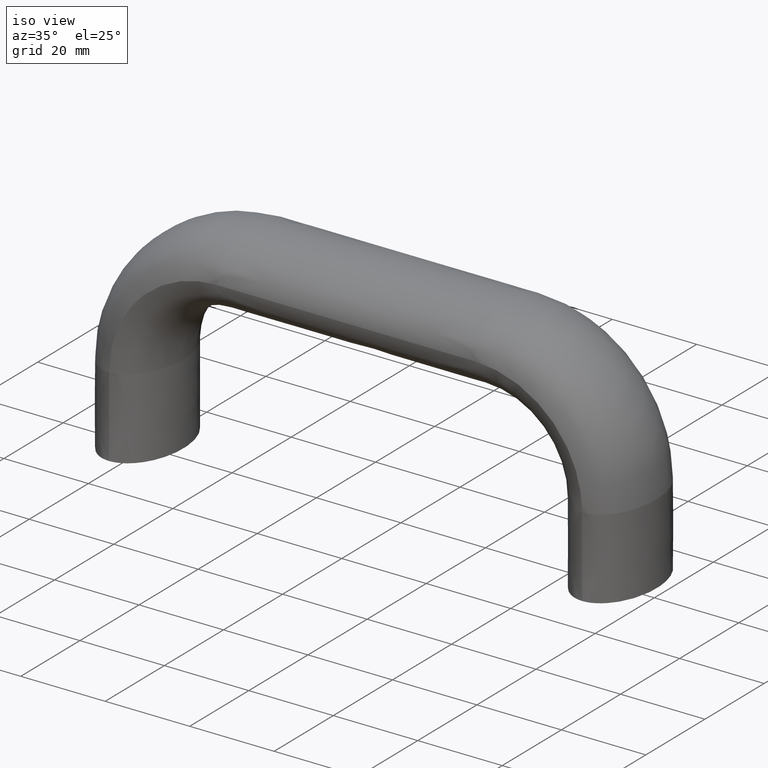
[diagram: clean part render]
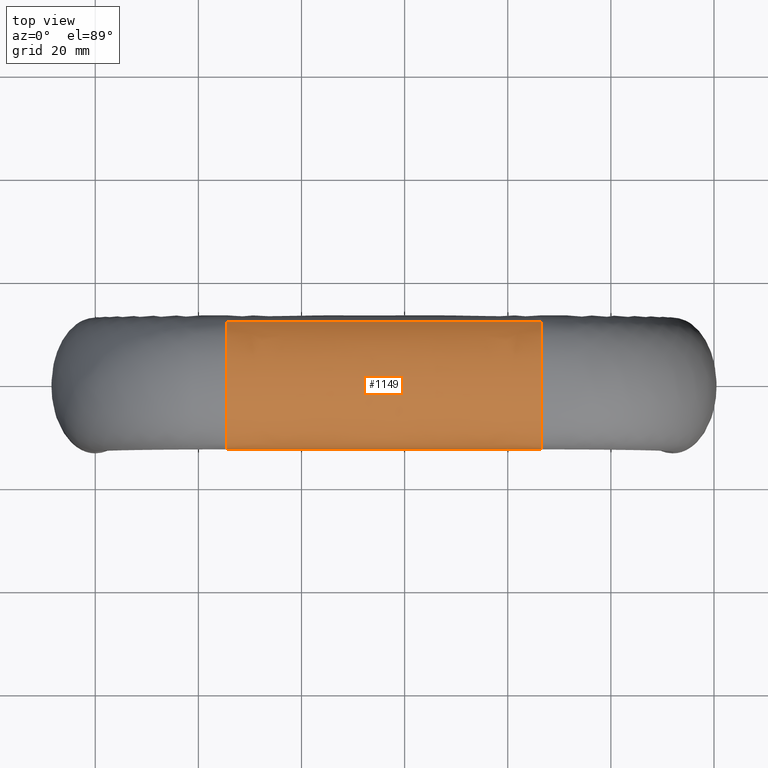
[diagram: tour spotlight — one face highlighted and labeled with its STEP entity id]
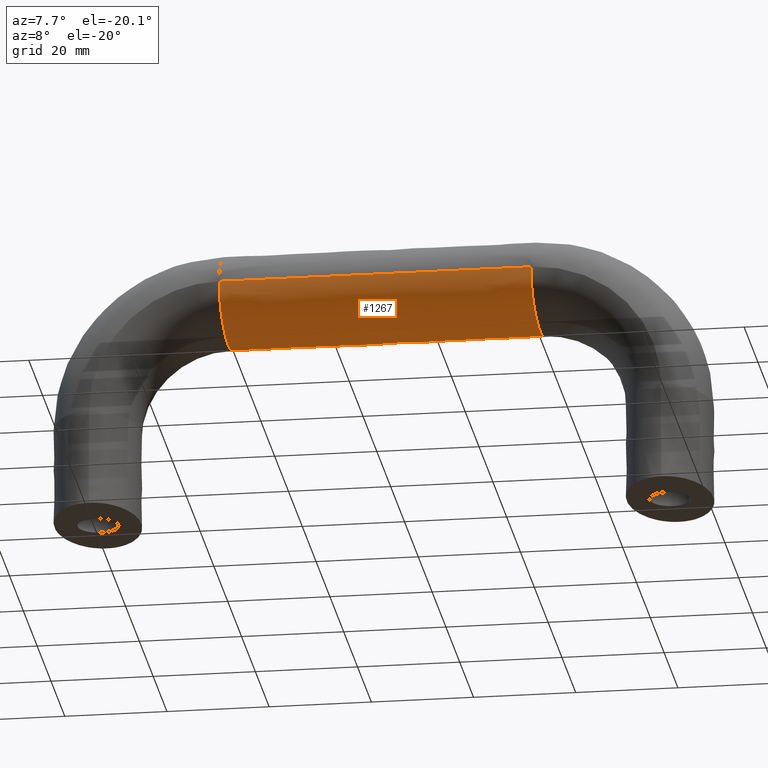
[diagram: tour spotlight — one face highlighted and labeled with its STEP entity id]
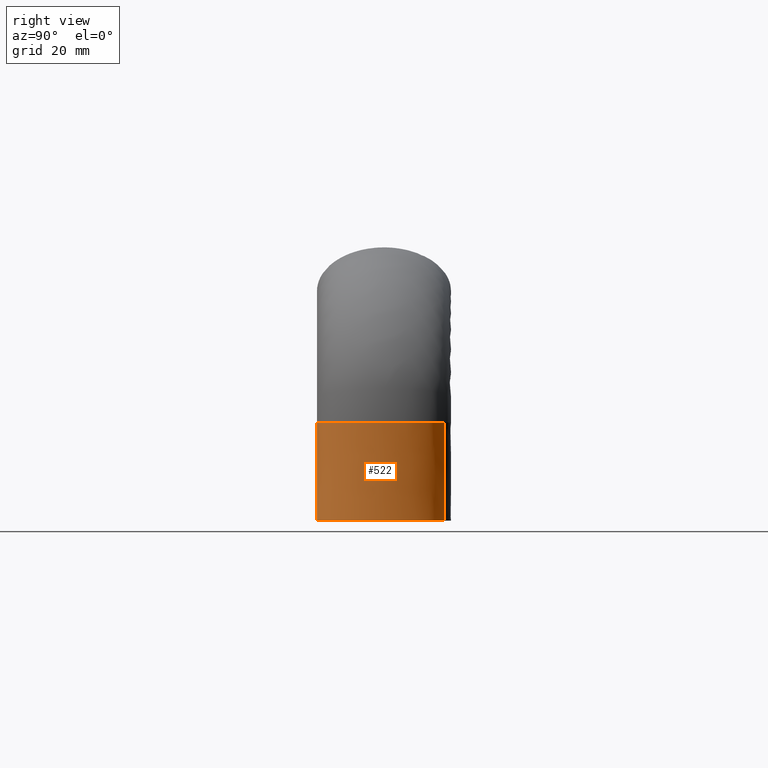
[diagram: tour spotlight — one face highlighted and labeled with its STEP entity id]
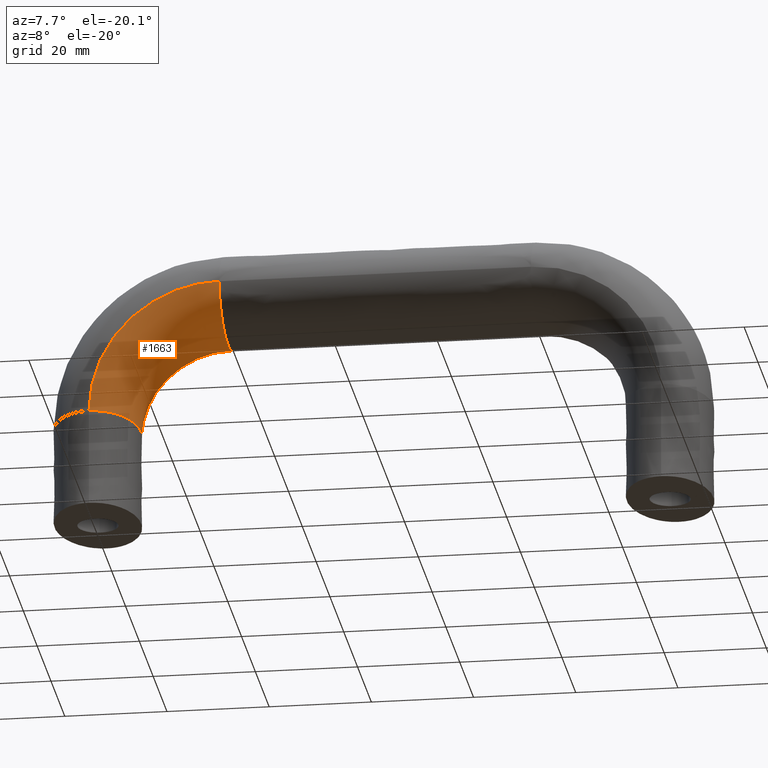
[diagram: tour spotlight — one face highlighted and labeled with its STEP entity id]
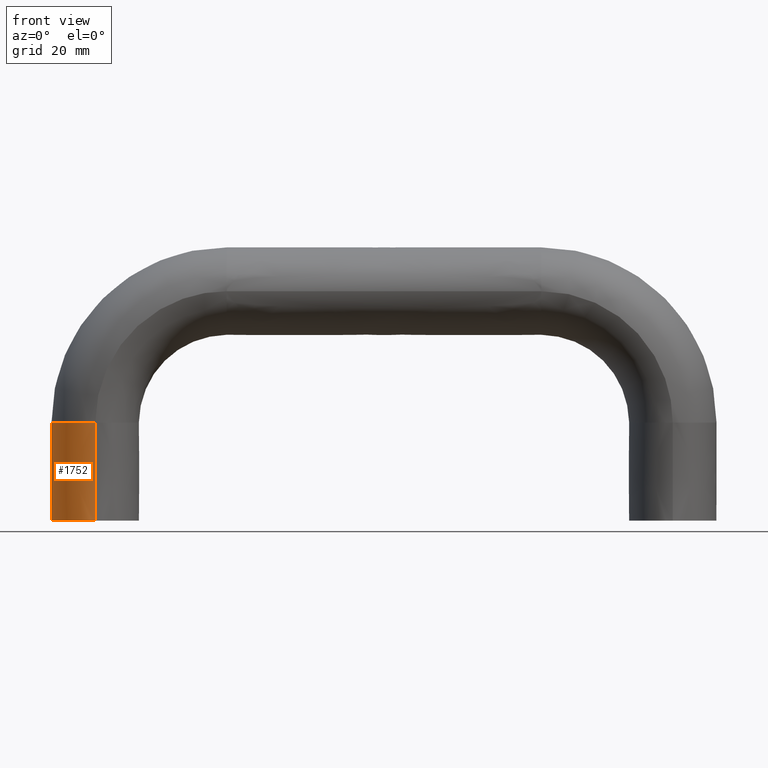
[diagram: tour spotlight — one face highlighted and labeled with its STEP entity id]
A machine part: a face-by-face anatomy tour. The part has 18 B-rep faces; the first image is the clean iso view, then the 5 largest visible faces are spotlighted one at a time (largest first), each with its STEP entity span.

Face 1 — top view, entity #1149. In plain terms, the highlighted face is a freeform B-spline surface patch.
Definition (entity closure, byte-faithful):
#876=CARTESIAN_POINT('',(86.500000000000000,11.762630261970060,48.119082295161462));
#877=VERTEX_POINT('',#876);
#887=CARTESIAN_POINT('',(86.500000000000000,-13.0,44.500008000000001));
#888=VERTEX_POINT('',#887);
#889=CARTESIAN_POINT('',(86.500000000000000,11.762630261970060,48.119082295161462));
#890=CARTESIAN_POINT('',(86.500000000000000,11.124518000535289,49.004813718325039));
#891=CARTESIAN_POINT('',(86.500000000000000,10.251275255545981,49.818066382314342));
#892=CARTESIAN_POINT('',(86.500000000000000,6.785826563922671,52.083936680683387));
#893=CARTESIAN_POINT('',(86.500000000000000,3.403392041388941,53.000008000000001));
#894=CARTESIAN_POINT('',(86.500000000000000,-3.403392041388945,53.000008000000001));
#895=CARTESIAN_POINT('',(86.500000000000000,-6.785826563922671,52.083936680683387));
#896=CARTESIAN_POINT('',(86.500000000000000,-10.395668951176340,49.723655119786798));
#897=CARTESIAN_POINT('',(86.500000000000000,-11.359223048605340,48.780769333152712));
#898=CARTESIAN_POINT('',(86.500000000000000,-12.661644796688099,46.724865017053901));
#899=CARTESIAN_POINT('',(86.500000000000000,-13.0,45.612655398146401));
#900=CARTESIAN_POINT('',(86.500000000000000,-13.0,44.500008000000001));
#901=B_SPLINE_CURVE_WITH_KNOTS('',3,(#889,#890,#891,#892,#893,#894,#895,#896,#897,#898,#899,#900),.UNSPECIFIED.,.F.,.U.,(4,2,2,2,2,4),(0.570000000007283,0.625000000000000,0.750000000000000,0.875000000000000,0.937500000000000,1.0),.UNSPECIFIED.);
#902=EDGE_CURVE('',#877,#888,#901,.T.);
#1064=CARTESIAN_POINT('',(25.500000000000000,11.762630262096810,48.119082294985532));
#1065=CARTESIAN_POINT('',(25.500000000000000,11.124518000766560,49.004813718109659));
#1066=CARTESIAN_POINT('',(25.500000000000000,10.251275255686201,49.818066382222661));
#1067=CARTESIAN_POINT('',(25.500000000000000,6.785826563922671,52.083936680683387));
#1068=CARTESIAN_POINT('',(25.500000000000000,3.403392041388941,53.000008000000001));
#1069=CARTESIAN_POINT('',(25.500000000000000,-3.403392041388945,53.000008000000001));
#1070=CARTESIAN_POINT('',(25.500000000000000,-6.785826563922671,52.083936680683387));
#1071=CARTESIAN_POINT('',(25.500000000000000,-10.395668951176340,49.723655119786798));
#1072=CARTESIAN_POINT('',(25.500000000000000,-11.359223048605340,48.780769333152712));
#1073=CARTESIAN_POINT('',(25.500000000000000,-12.661644796688099,46.724865017053901));
#1074=CARTESIAN_POINT('',(25.500000000000000,-13.0,45.612655398146401));
#1075=CARTESIAN_POINT('',(25.500000000000000,-13.0,44.500008000000001));
#1076=CARTESIAN_POINT('',(45.833333317709958,11.762630262096810,48.119294784389822));
#1077=CARTESIAN_POINT('',(45.833333317265676,11.124518000766560,49.005029232038403));
#1078=CARTESIAN_POINT('',(45.833333316868838,10.251275255686201,49.818284540956107));
#1079=CARTESIAN_POINT('',(45.833333315797013,6.785826563922671,52.084161833317999));
#1080=CARTESIAN_POINT('',(45.833333315378503,3.403392041388941,53.000235824447799));
#1081=CARTESIAN_POINT('',(45.833333315378503,-3.403392041388945,53.000235824447799));
#1082=CARTESIAN_POINT('',(45.833333315797013,-6.785826563922671,52.084161833317999));
#1083=CARTESIAN_POINT('',(45.833333316913503,-10.395668951176340,49.723872987171703));
#1084=CARTESIAN_POINT('',(45.833333317375200,-11.359223048605340,48.780984116328902));
#1085=CARTESIAN_POINT('',(45.833333318413402,-12.661644796688099,46.725072696359398));
#1086=CARTESIAN_POINT('',(45.833333318993297,-13.0,45.612859000745303));
#1087=CARTESIAN_POINT('',(45.833333319593137,-13.0,44.500207251482301));
#1088=CARTESIAN_POINT('',(66.166666682289971,11.762630262096810,48.119294784389822));
#1089=CARTESIAN_POINT('',(66.166666682734245,11.124518000766560,49.005029232038403));
#1090=CARTESIAN_POINT('',(66.166666683131155,10.251275255686201,49.818284540956107));
#1091=CARTESIAN_POINT('',(66.166666684202895,6.785826563922671,52.084161833317999));
#1092=CARTESIAN_POINT('',(66.166666684621504,3.403392041388941,53.000235824447799));
#1093=CARTESIAN_POINT('',(66.166666684621504,-3.403392041388945,53.000235824447799));
#1094=CARTESIAN_POINT('',(66.166666684202895,-6.785826563922671,52.084161833317999));
#1095=CARTESIAN_POINT('',(66.166666683086390,-10.395668951176340,49.723872987171703));
#1096=CARTESIAN_POINT('',(66.166666682624694,-11.359223048605340,48.780984116328902));
#1097=CARTESIAN_POINT('',(66.166666681586591,-12.661644796688099,46.725072696359398));
#1098=CARTESIAN_POINT('',(66.166666681006689,-13.0,45.612859000745303));
#1099=CARTESIAN_POINT('',(66.166666680406834,-13.0,44.500207251482301));
#1100=CARTESIAN_POINT('',(86.500000000000000,11.762630262096810,48.119082294985532));
#1101=CARTESIAN_POINT('',(86.500000000000000,11.124518000766560,49.004813718109659));
#1102=CARTESIAN_POINT('',(86.500000000000000,10.251275255686201,49.818066382222661));
#1103=CARTESIAN_POINT('',(86.500000000000000,6.785826563922671,52.083936680683387));
#1104=CARTESIAN_POINT('',(86.500000000000000,3.403392041388941,53.000008000000001));
#1105=CARTESIAN_POINT('',(86.500000000000000,-3.403392041388945,53.000008000000001));
#1106=CARTESIAN_POINT('',(86.500000000000000,-6.785826563922671,52.083936680683387));
#1107=CARTESIAN_POINT('',(86.500000000000000,-10.395668951176340,49.723655119786798));
#1108=CARTESIAN_POINT('',(86.500000000000000,-11.359223048605340,48.780769333152712));
#1109=CARTESIAN_POINT('',(86.500000000000000,-12.661644796688099,46.724865017053901));
#1110=CARTESIAN_POINT('',(86.500000000000000,-13.0,45.612655398146401));
#1111=CARTESIAN_POINT('',(86.500000000000000,-13.0,44.500008000000001));
#1112=B_SPLINE_SURFACE_WITH_KNOTS('',3,3,((#1064,#1076,#1088,#1100),(#1065,#1077,#1089,#1101),(#1066,#1078,#1090,#1102),(#1067,#1079,#1091,#1103),(#1068,#1080,#1092,#1104),(#1069,#1081,#1093,#1105),(#1070,#1082,#1094,#1106),(#1071,#1083,#1095,#1107),(#1072,#1084,#1096,#1108),(#1073,#1085,#1097,#1109),(#1074,#1086,#1098,#1110),(#1075,#1087,#1099,#1111)),.UNSPECIFIED.,.F.,.F.,.U.,(4,2,2,2,2,4),(4,4),(0.0,4.401538297102258,14.405034426880110,24.408530556657961,29.410278621546890,34.412026686435809),(0.0,61.000000018240961),.UNSPECIFIED.);
#1113=ORIENTED_EDGE('',*,*,#902,.F.);
#1114=CARTESIAN_POINT('',(25.500000000000000,11.762630261970060,48.119082295161462));
#1115=VERTEX_POINT('',#1114);
#1116=CARTESIAN_POINT('',(25.500000000000000,11.762630261970060,48.119082295161462));
#1117=CARTESIAN_POINT('',(45.833333317709958,11.762630262096810,48.119294784389822));
#1118=CARTESIAN_POINT('',(66.166666682289971,11.762630262096810,48.119294784389822));
#1119=CARTESIAN_POINT('',(86.500000000000000,11.762630261970060,48.119082295161462));
#1120=B_SPLINE_CURVE_WITH_KNOTS('',3,(#1116,#1117,#1118,#1119),.UNSPECIFIED.,.F.,.U.,(4,4),(0.329714181525299,0.670285818474701),.UNSPECIFIED.);
#1121=EDGE_CURVE('',#1115,#877,#1120,.T.);
#1122=ORIENTED_EDGE('',*,*,#1121,.F.);
#1123=CARTESIAN_POINT('',(25.500000000000000,-13.0,44.500008000000001));
#1124=VERTEX_POINT('',#1123);
#1125=CARTESIAN_POINT('',(25.500000000000000,11.762630261970060,48.119082295161462));
#1126=CARTESIAN_POINT('',(25.500000000000000,11.124518000535289,49.004813718325039));
#1127=CARTESIAN_POINT('',(25.500000000000000,10.251275255545981,49.818066382314342));
#1128=CARTESIAN_POINT('',(25.500000000000000,6.785826563922671,52.083936680683387));
#1129=CARTESIAN_POINT('',(25.500000000000000,3.403392041388941,53.000008000000001));
#1130=CARTESIAN_POINT('',(25.500000000000000,-3.403392041388945,53.000008000000001));
#1131=CARTESIAN_POINT('',(25.500000000000000,-6.785826563922671,52.083936680683387));
#1132=CARTESIAN_POINT('',(25.500000000000000,-10.395668951176340,49.723655119786798));
#1133=CARTESIAN_POINT('',(25.500000000000000,-11.359223048605340,48.780769333152712));
#1134=CARTESIAN_POINT('',(25.500000000000000,-12.661644796688099,46.724865017053901));
#1135=CARTESIAN_POINT('',(25.500000000000000,-13.0,45.612655398146401));
#1136=CARTESIAN_POINT('',(25.500000000000000,-13.0,44.500008000000001));
#1137=B_SPLINE_CURVE_WITH_KNOTS('',3,(#1125,#1126,#1127,#1128,#1129,#1130,#1131,#1132,#1133,#1134,#1135,#1136),.UNSPECIFIED.,.F.,.U.,(4,2,2,2,2,4),(0.570000000007283,0.625000000000000,0.750000000000000,0.875000000000000,0.937500000000000,1.0),.UNSPECIFIED.);
#1138=EDGE_CURVE('',#1115,#1124,#1137,.T.);
#1139=ORIENTED_EDGE('',*,*,#1138,.T.);
#1140=CARTESIAN_POINT('',(25.500000000000000,-13.0,44.500008000000001));
#1141=CARTESIAN_POINT('',(45.833333319593137,-13.0,44.500207251482301));
#1142=CARTESIAN_POINT('',(66.166666680406834,-13.0,44.500207251482301));
#1143=CARTESIAN_POINT('',(86.500000000000000,-13.0,44.500008000000001));
#1144=B_SPLINE_CURVE_WITH_KNOTS('',3,(#1140,#1141,#1142,#1143),.UNSPECIFIED.,.F.,.U.,(4,4),(0.329714181525299,0.670285818474701),.UNSPECIFIED.);
#1145=EDGE_CURVE('',#1124,#888,#1144,.T.);
#1146=ORIENTED_EDGE('',*,*,#1145,.T.);
#1147=EDGE_LOOP('',(#1113,#1122,#1139,#1146));
#1148=FACE_OUTER_BOUND('',#1147,.T.);
#1149=ADVANCED_FACE('',(#1148),#1112,.T.);

Face 2 — auxiliary view, entity #1267. In plain terms, the highlighted face is a freeform B-spline surface patch.
Definition (entity closure, byte-faithful):
#850=CARTESIAN_POINT('',(86.500000000000000,11.762637318019101,40.880943499016666));
#851=VERTEX_POINT('',#850);
#865=CARTESIAN_POINT('',(86.500000000000000,13.0,44.500008000000001));
#866=VERTEX_POINT('',#865);
#867=CARTESIAN_POINT('',(86.500000000000000,11.762637318019101,40.880943499016666));
#868=CARTESIAN_POINT('',(86.500000000000000,11.849650038056430,41.001721864901022));
#869=CARTESIAN_POINT('',(86.500000000000000,11.932290729989900,41.123847900134180));
#870=CARTESIAN_POINT('',(86.500000000000000,12.661644796688099,42.275150982946151));
#871=CARTESIAN_POINT('',(86.500000000000000,13.0,43.387360601853601));
#872=CARTESIAN_POINT('',(86.500000000000000,13.0,44.500008000000001));
#873=B_SPLINE_CURVE_WITH_KNOTS('',3,(#867,#868,#869,#870,#871,#872),.UNSPECIFIED.,.F.,.U.,(4,2,4),(0.430000202721214,0.437500000000000,0.500000000000000),.UNSPECIFIED.);
#874=EDGE_CURVE('',#851,#866,#873,.T.);
#876=CARTESIAN_POINT('',(86.500000000000000,11.762630261970060,48.119082295161462));
#877=VERTEX_POINT('',#876);
#878=CARTESIAN_POINT('',(86.500000000000000,13.0,44.500008000000001));
#879=CARTESIAN_POINT('',(86.500000000000000,13.0,45.612655398146401));
#880=CARTESIAN_POINT('',(86.500000000000000,12.661644796688099,46.724865017053901));
#881=CARTESIAN_POINT('',(86.500000000000000,11.932288617685890,47.876171434188997));
#882=CARTESIAN_POINT('',(86.500000000000000,11.849645570299540,47.998300737523941));
#883=CARTESIAN_POINT('',(86.500000000000000,11.762630261970060,48.119082295161462));
#884=B_SPLINE_CURVE_WITH_KNOTS('',3,(#878,#879,#880,#881,#882,#883),.UNSPECIFIED.,.F.,.U.,(4,2,4),(0.500000000000000,0.562500000000000,0.570000000007282),.UNSPECIFIED.);
#885=EDGE_CURVE('',#866,#877,#884,.T.);
#887=CARTESIAN_POINT('',(86.500000000000000,-13.0,44.500008000000001));
#888=VERTEX_POINT('',#887);
#1045=CARTESIAN_POINT('',(86.500000000000000,-13.0,44.500008000000001));
#1046=CARTESIAN_POINT('',(86.500000000000000,-13.0,43.387360601853601));
#1047=CARTESIAN_POINT('',(86.500000000000000,-12.661644796688099,42.275150982946101));
#1048=CARTESIAN_POINT('',(86.500000000000000,-11.359223048605340,40.219246666847347));
#1049=CARTESIAN_POINT('',(86.500000000000000,-10.395668951176340,39.276360880213247));
#1050=CARTESIAN_POINT('',(86.500000000000000,-6.785826563922671,36.916079319316601));
#1051=CARTESIAN_POINT('',(86.500000000000000,-3.403392041388941,36.000008000000001));
#1052=CARTESIAN_POINT('',(86.500000000000000,3.403392041388945,36.000008000000001));
#1053=CARTESIAN_POINT('',(86.500000000000000,6.785826563922680,36.916079319316601));
#1054=CARTESIAN_POINT('',(86.500000000000000,10.251279158574910,39.181952169666161));
#1055=CARTESIAN_POINT('',(86.500000000000000,11.124524438030560,39.995208276930860));
#1056=CARTESIAN_POINT('',(86.500000000000000,11.762637318019101,40.880943499016666));
#1057=B_SPLINE_CURVE_WITH_KNOTS('',3,(#1045,#1046,#1047,#1048,#1049,#1050,#1051,#1052,#1053,#1054,#1055,#1056),.UNSPECIFIED.,.F.,.U.,(4,2,2,2,2,4),(0.0,0.062500000000000,0.125000000000000,0.250000000000000,0.375000000000000,0.430000202721214),.UNSPECIFIED.);
#1058=EDGE_CURVE('',#888,#851,#1057,.T.);
#1114=CARTESIAN_POINT('',(25.500000000000000,11.762630261970060,48.119082295161462));
#1115=VERTEX_POINT('',#1114);
#1116=CARTESIAN_POINT('',(25.500000000000000,11.762630261970060,48.119082295161462));
#1117=CARTESIAN_POINT('',(45.833333317709958,11.762630262096810,48.119294784389822));
#1118=CARTESIAN_POINT('',(66.166666682289971,11.762630262096810,48.119294784389822));
#1119=CARTESIAN_POINT('',(86.500000000000000,11.762630261970060,48.119082295161462));
#1120=B_SPLINE_CURVE_WITH_KNOTS('',3,(#1116,#1117,#1118,#1119),.UNSPECIFIED.,.F.,.U.,(4,4),(0.329714181525299,0.670285818474701),.UNSPECIFIED.);
#1121=EDGE_CURVE('',#1115,#877,#1120,.T.);
#1123=CARTESIAN_POINT('',(25.500000000000000,-13.0,44.500008000000001));
#1124=VERTEX_POINT('',#1123);
#1140=CARTESIAN_POINT('',(25.500000000000000,-13.0,44.500008000000001));
#1141=CARTESIAN_POINT('',(45.833333319593137,-13.0,44.500207251482301));
#1142=CARTESIAN_POINT('',(66.166666680406834,-13.0,44.500207251482301));
#1143=CARTESIAN_POINT('',(86.500000000000000,-13.0,44.500008000000001));
#1144=B_SPLINE_CURVE_WITH_KNOTS('',3,(#1140,#1141,#1142,#1143),.UNSPECIFIED.,.F.,.U.,(4,4),(0.329714181525299,0.670285818474701),.UNSPECIFIED.);
#1145=EDGE_CURVE('',#1124,#888,#1144,.T.);
#1150=CARTESIAN_POINT('',(25.500000000000000,-13.0,44.500008000000001));
#1151=CARTESIAN_POINT('',(25.500000000000000,-13.0,43.387360601853601));
#1152=CARTESIAN_POINT('',(25.500000000000000,-12.661644796688099,42.275150982946101));
#1153=CARTESIAN_POINT('',(25.500000000000000,-11.359223048605340,40.219246666847347));
#1154=CARTESIAN_POINT('',(25.500000000000000,-10.395668951176340,39.276360880213247));
#1155=CARTESIAN_POINT('',(25.500000000000000,-6.785826563922671,36.916079319316601));
#1156=CARTESIAN_POINT('',(25.500000000000000,-3.403392041388941,36.000008000000001));
#1157=CARTESIAN_POINT('',(25.500000000000000,3.403392041388945,36.000008000000001));
#1158=CARTESIAN_POINT('',(25.500000000000000,6.785826563922680,36.916079319316601));
#1159=CARTESIAN_POINT('',(25.500000000000000,10.395668951176340,39.276360880213247));
#1160=CARTESIAN_POINT('',(25.500000000000000,11.359223048605340,40.219246666847347));
#1161=CARTESIAN_POINT('',(25.500000000000000,12.661644796688099,42.275150982946151));
#1162=CARTESIAN_POINT('',(25.500000000000000,13.0,43.387360601853601));
#1163=CARTESIAN_POINT('',(25.500000000000000,13.0,45.612655398146401));
#1164=CARTESIAN_POINT('',(25.500000000000000,12.661644796688099,46.724865017053901));
#1165=CARTESIAN_POINT('',(25.500000000000000,11.932288617761770,47.876171434069242));
#1166=CARTESIAN_POINT('',(25.500000000000000,11.849645570460019,47.998300737286783));
#1167=CARTESIAN_POINT('',(25.500000000000000,11.762630262096810,48.119082294985532));
#1168=CARTESIAN_POINT('',(45.833333319593137,-13.0,44.500207251482301));
#1169=CARTESIAN_POINT('',(45.833333320192999,-13.0,43.387555502219300));
#1170=CARTESIAN_POINT('',(45.833333320812002,-12.661644796688099,42.275341236255542));
#1171=CARTESIAN_POINT('',(45.833333321990402,-11.359223048605340,40.219427747628004));
#1172=CARTESIAN_POINT('',(45.833333322545002,-10.395668951176340,39.276537478702103));
#1173=CARTESIAN_POINT('',(45.833333323969597,-6.785826563922671,36.916243843908752));
#1174=CARTESIAN_POINT('',(45.833333324535403,-3.403392041388941,36.000167477154797));
#1175=CARTESIAN_POINT('',(45.833333324535403,3.403392041388945,36.000167477154797));
#1176=CARTESIAN_POINT('',(45.833333323969597,6.785826563922680,36.916243843908802));
#1177=CARTESIAN_POINT('',(45.833333322545002,10.395668951176340,39.276537478702153));
#1178=CARTESIAN_POINT('',(45.833333321990303,11.359223048605340,40.219427747705048));
#1179=CARTESIAN_POINT('',(45.833333320812002,12.661644796688099,42.275341236255542));
#1180=CARTESIAN_POINT('',(45.833333320192800,13.0,43.387555502147201));
#1181=CARTESIAN_POINT('',(45.833333318993297,13.0,45.612859000745303));
#1182=CARTESIAN_POINT('',(45.833333318413402,12.661644796688099,46.725072696359398));
#1183=CARTESIAN_POINT('',(45.833333317832007,11.932288617761770,47.876383091542323));
#1184=CARTESIAN_POINT('',(45.833333317770538,11.849645570460019,47.998512814255918));
#1185=CARTESIAN_POINT('',(45.833333317709958,11.762630262096810,48.119294784389822));
#1186=CARTESIAN_POINT('',(66.166666680406834,-13.0,44.500207251482301));
#1187=CARTESIAN_POINT('',(66.166666679806994,-13.0,43.387555502219300));
#1188=CARTESIAN_POINT('',(66.166666679187898,-12.661644796688099,42.275341236255542));
#1189=CARTESIAN_POINT('',(66.166666678009591,-11.359223048605340,40.219427747628004));
#1190=CARTESIAN_POINT('',(66.166666677454899,-10.395668951176340,39.276537478702103));
#1191=CARTESIAN_POINT('',(66.166666676030289,-6.785826563922671,36.916243843908752));
#1192=CARTESIAN_POINT('',(66.166666675464597,-3.403392041388941,36.000167477154797));
#1193=CARTESIAN_POINT('',(66.166666675464597,3.403392041388945,36.000167477154797));
#1194=CARTESIAN_POINT('',(66.166666676030289,6.785826563922680,36.916243843908802));
#1195=CARTESIAN_POINT('',(66.166666677454899,10.395668951176340,39.276537478702153));
#1196=CARTESIAN_POINT('',(66.166666678009591,11.359223048605340,40.219427747705048));
#1197=CARTESIAN_POINT('',(66.166666679187898,12.661644796688099,42.275341236255542));
#1198=CARTESIAN_POINT('',(66.166666679807093,13.0,43.387555502147201));
#1199=CARTESIAN_POINT('',(66.166666681006689,13.0,45.612859000745303));
#1200=CARTESIAN_POINT('',(66.166666681586591,12.661644796688099,46.725072696359398));
#1201=CARTESIAN_POINT('',(66.166666682167929,11.932288617761770,47.876383091542323));
#1202=CARTESIAN_POINT('',(66.166666682229391,11.849645570460019,47.998512814255918));
#1203=CARTESIAN_POINT('',(66.166666682289971,11.762630262096810,48.119294784389822));
#1204=CARTESIAN_POINT('',(86.500000000000000,-13.0,44.500008000000001));
#1205=CARTESIAN_POINT('',(86.500000000000000,-13.0,43.387360601853601));
#1206=CARTESIAN_POINT('',(86.500000000000000,-12.661644796688099,42.275150982946101));
#1207=CARTESIAN_POINT('',(86.500000000000000,-11.359223048605340,40.219246666847347));
#1208=CARTESIAN_POINT('',(86.500000000000000,-10.395668951176340,39.276360880213247));
#1209=CARTESIAN_POINT('',(86.500000000000000,-6.785826563922671,36.916079319316601));
#1210=CARTESIAN_POINT('',(86.500000000000000,-3.403392041388941,36.000008000000001));
#1211=CARTESIAN_POINT('',(86.500000000000000,3.403392041388945,36.000008000000001));
#1212=CARTESIAN_POINT('',(86.500000000000000,6.785826563922680,36.916079319316601));
#1213=CARTESIAN_POINT('',(86.500000000000000,10.395668951176340,39.276360880213247));
#1214=CARTESIAN_POINT('',(86.500000000000000,11.359223048605340,40.219246666847347));
#1215=CARTESIAN_POINT('',(86.500000000000000,12.661644796688099,42.275150982946151));
#1216=CARTESIAN_POINT('',(86.500000000000000,13.0,43.387360601853601));
#1217=CARTESIAN_POINT('',(86.500000000000000,13.0,45.612655398146401));
#1218=CARTESIAN_POINT('',(86.500000000000000,12.661644796688099,46.724865017053901));
#1219=CARTESIAN_POINT('',(86.500000000000000,11.932288617761770,47.876171434069242));
#1220=CARTESIAN_POINT('',(86.500000000000000,11.849645570460019,47.998300737286783));
#1221=CARTESIAN_POINT('',(86.500000000000000,11.762630262096810,48.119082294985532));
#1222=B_SPLINE_SURFACE_WITH_KNOTS('',3,3,((#1150,#1168,#1186,#1204),(#1151,#1169,#1187,#1205),(#1152,#1170,#1188,#1206),(#1153,#1171,#1189,#1207),(#1154,#1172,#1190,#1208),(#1155,#1173,#1191,#1209),(#1156,#1174,#1192,#1210),(#1157,#1175,#1193,#1211),(#1158,#1176,#1194,#1212),(#1159,#1177,#1195,#1213),(#1160,#1178,#1196,#1214),(#1161,#1179,#1197,#1215),(#1162,#1180,#1198,#1216),(#1163,#1181,#1199,#1217),(#1164,#1182,#1200,#1218),(#1165,#1183,#1201,#1219),(#1166,#1184,#1202,#1220),(#1167,#1185,#1203,#1221)),.UNSPECIFIED.,.F.,.F.,.U.,(4,2,2,2,2,2,2,2,4),(4,4),(0.0,5.001748311075208,10.003496622150420,20.006993244300830,30.010489866451248,35.012238177526463,40.013986488601667,45.015734799676878,45.615944597005900),(0.0,61.000000015993457),.UNSPECIFIED.);
#1223=ORIENTED_EDGE('',*,*,#885,.F.);
#1224=ORIENTED_EDGE('',*,*,#874,.F.);
#1225=ORIENTED_EDGE('',*,*,#1058,.F.);
#1226=ORIENTED_EDGE('',*,*,#1145,.F.);
#1227=CARTESIAN_POINT('',(25.500000000000000,11.762637318019101,40.880943499016666));
#1228=VERTEX_POINT('',#1227);
#1229=CARTESIAN_POINT('',(25.500000000000000,-13.0,44.500008000000001));
#1230=CARTESIAN_POINT('',(25.500000000000000,-13.0,43.387360601853601));
#1231=CARTESIAN_POINT('',(25.500000000000000,-12.661644796688099,42.275150982946101));
#1232=CARTESIAN_POINT('',(25.500000000000000,-11.359223048605340,40.219246666847347));
#1233=CARTESIAN_POINT('',(25.500000000000000,-10.395668951176340,39.276360880213247));
#1234=CARTESIAN_POINT('',(25.500000000000000,-6.785826563922671,36.916079319316601));
#1235=CARTESIAN_POINT('',(25.500000000000000,-3.403392041388941,36.000008000000001));
#1236=CARTESIAN_POINT('',(25.500000000000000,3.403392041388945,36.000008000000001));
#1237=CARTESIAN_POINT('',(25.500000000000000,6.785826563922680,36.916079319316601));
#1238=CARTESIAN_POINT('',(25.500000000000000,10.251279158574910,39.181952169666161));
#1239=CARTESIAN_POINT('',(25.500000000000000,11.124524438030560,39.995208276930860));
#1240=CARTESIAN_POINT('',(25.500000000000000,11.762637318019101,40.880943499016666));
#1241=B_SPLINE_CURVE_WITH_KNOTS('',3,(#1229,#1230,#1231,#1232,#1233,#1234,#1235,#1236,#1237,#1238,#1239,#1240),.UNSPECIFIED.,.F.,.U.,(4,2,2,2,2,4),(0.0,0.062500000000000,0.125000000000000,0.250000000000000,0.375000000000000,0.430000202721214),.UNSPECIFIED.);
#1242=EDGE_CURVE('',#1124,#1228,#1241,.T.);
#1243=ORIENTED_EDGE('',*,*,#1242,.T.);
#1244=CARTESIAN_POINT('',(25.500000000000000,13.0,44.500008000000001));
#1245=VERTEX_POINT('',#1244);
#1246=CARTESIAN_POINT('',(25.500000000000000,11.762637318019101,40.880943499016666));
#1247=CARTESIAN_POINT('',(25.500000000000000,11.849650038056430,41.001721864901022));
#1248=CARTESIAN_POINT('',(25.500000000000000,11.932290729989900,41.123847900134180));
#1249=CARTESIAN_POINT('',(25.500000000000000,12.661644796688099,42.275150982946151));
#1250=CARTESIAN_POINT('',(25.500000000000000,13.0,43.387360601853601));
#1251=CARTESIAN_POINT('',(25.500000000000000,13.0,44.500008000000001));
#1252=B_SPLINE_CURVE_WITH_KNOTS('',3,(#1246,#1247,#1248,#1249,#1250,#1251),.UNSPECIFIED.,.F.,.U.,(4,2,4),(0.430000202721214,0.437500000000000,0.500000000000000),.UNSPECIFIED.);
#1253=EDGE_CURVE('',#1228,#1245,#1252,.T.);
#1254=ORIENTED_EDGE('',*,*,#1253,.T.);
#1255=CARTESIAN_POINT('',(25.500000000000000,13.0,44.500008000000001));
#1256=CARTESIAN_POINT('',(25.500000000000000,13.0,45.612655398146401));
#1257=CARTESIAN_POINT('',(25.500000000000000,12.661644796688099,46.724865017053901));
#1258=CARTESIAN_POINT('',(25.500000000000000,11.932288617685890,47.876171434188997));
#1259=CARTESIAN_POINT('',(25.500000000000000,11.849645570299540,47.998300737523941));
#1260=CARTESIAN_POINT('',(25.500000000000000,11.762630261970060,48.119082295161462));
#1261=B_SPLINE_CURVE_WITH_KNOTS('',3,(#1255,#1256,#1257,#1258,#1259,#1260),.UNSPECIFIED.,.F.,.U.,(4,2,4),(0.500000000000000,0.562500000000000,0.570000000007282),.UNSPECIFIED.);
#1262=EDGE_CURVE('',#1245,#1115,#1261,.T.);
#1263=ORIENTED_EDGE('',*,*,#1262,.T.);
#1264=ORIENTED_EDGE('',*,*,#1121,.T.);
#1265=EDGE_LOOP('',(#1223,#1224,#1225,#1226,#1243,#1254,#1263,#1264));
#1266=FACE_OUTER_BOUND('',#1265,.T.);
#1267=ADVANCED_FACE('',(#1266),#1222,.T.);

Face 3 — right view, entity #522. In plain terms, the highlighted face is a freeform B-spline surface patch.
Definition (entity closure, byte-faithful):
#416=CARTESIAN_POINT('',(115.619074294985500,11.762630262096810,19.000008000000001));
#417=CARTESIAN_POINT('',(116.504805718109590,11.124518000766560,19.000008000000001));
#418=CARTESIAN_POINT('',(117.318058382222700,10.251275255686201,19.000008000000001));
#419=CARTESIAN_POINT('',(119.583928680683400,6.785826563922671,19.000008000000001));
#420=CARTESIAN_POINT('',(120.500000000000000,3.403392041388941,19.000008000000001));
#421=CARTESIAN_POINT('',(120.500000000000000,-3.403392041388945,19.000008000000001));
#422=CARTESIAN_POINT('',(119.583928680683400,-6.785826563922671,19.000008000000001));
#423=CARTESIAN_POINT('',(117.223647119786800,-10.395668951176340,19.000008000000001));
#424=CARTESIAN_POINT('',(116.280761333152600,-11.359223048605340,19.000008000000001));
#425=CARTESIAN_POINT('',(114.224857017054010,-12.661644796688099,19.000008000000001));
#426=CARTESIAN_POINT('',(113.112647398146390,-13.0,19.000008000000001));
#427=CARTESIAN_POINT('',(112.0,-13.0,19.000008000000001));
#428=CARTESIAN_POINT('',(115.619140479965490,11.762630262096810,12.666672001587081));
#429=CARTESIAN_POINT('',(116.504872845149290,11.124518000766560,12.666672001632200));
#430=CARTESIAN_POINT('',(117.318126333075100,10.251275255686201,12.666672001672501));
#431=CARTESIAN_POINT('',(119.583998810011590,6.785826563922671,12.666672001781400));
#432=CARTESIAN_POINT('',(120.500070961536000,3.403392041388941,12.666672001823921));
#433=CARTESIAN_POINT('',(120.500070961536000,-3.403392041388945,12.666672001823921));
#434=CARTESIAN_POINT('',(119.583998809973390,-6.785826563922671,12.666672001781400));
#435=CARTESIAN_POINT('',(117.223714979909200,-10.395668951176340,12.666672001667960));
#436=CARTESIAN_POINT('',(116.280828232575000,-11.359223048605340,12.666672001621080));
#437=CARTESIAN_POINT('',(114.224921703825200,-12.661644796688099,12.666672001515620));
#438=CARTESIAN_POINT('',(113.112710815118010,-13.0,12.666672001456700));
#439=CARTESIAN_POINT('',(112.000062061699500,-13.0,12.666672001395771));
#440=CARTESIAN_POINT('',(115.619074294985400,11.762630262096810,6.333335998808098));
#441=CARTESIAN_POINT('',(116.504805718109490,11.124518000766560,6.333335998774208));
#442=CARTESIAN_POINT('',(117.318058382222500,10.251275255686201,6.333335998743943));
#443=CARTESIAN_POINT('',(119.583928680683200,6.785826563922671,6.333335998662150));
#444=CARTESIAN_POINT('',(120.500000000000000,3.403392041388941,6.333335998630211));
#445=CARTESIAN_POINT('',(120.500000000000000,-3.403392041388945,6.333335998630211));
#446=CARTESIAN_POINT('',(119.583928680683200,-6.785826563922671,6.333335998662150));
#447=CARTESIAN_POINT('',(117.223647119786610,-10.395668951176340,6.333335998747340));
#448=CARTESIAN_POINT('',(116.280761333152600,-11.359223048605340,6.333335998782560));
#449=CARTESIAN_POINT('',(114.224857017053790,-12.661644796688099,6.333335998861760));
#450=CARTESIAN_POINT('',(113.112647398146190,-13.0,6.333335998906009));
#451=CARTESIAN_POINT('',(111.999999999999800,-13.0,6.333335998951775));
#452=CARTESIAN_POINT('',(115.619074294985400,11.762630262096810,-4.923995E-016));
#453=CARTESIAN_POINT('',(116.504805718109490,11.124518000766560,-6.129092E-016));
#454=CARTESIAN_POINT('',(117.318058382222500,10.251275255686201,-7.235577E-016));
#455=CARTESIAN_POINT('',(119.583928680683200,6.785826563922671,-1.031845E-015));
#456=CARTESIAN_POINT('',(120.500000000000000,3.403392041388941,-1.156482E-015));
#457=CARTESIAN_POINT('',(120.500000000000000,-3.403392041388945,-1.156482E-015));
#458=CARTESIAN_POINT('',(119.583928680683200,-6.785826563922671,-1.031845E-015));
#459=CARTESIAN_POINT('',(117.223647119786610,-10.395668951176340,-7.107124E-016));
#460=CARTESIAN_POINT('',(116.280761333152600,-11.359223048605340,-5.824264E-016));
#461=CARTESIAN_POINT('',(114.224857017053790,-12.661644796688099,-3.027068E-016));
#462=CARTESIAN_POINT('',(113.112647398146190,-13.0,-1.513832E-016));
#463=CARTESIAN_POINT('',(111.999999999999800,-13.0,2.527783E-031));
#464=B_SPLINE_SURFACE_WITH_KNOTS('',3,3,((#416,#428,#440,#452),(#417,#429,#441,#453),(#418,#430,#442,#454),(#419,#431,#443,#455),(#420,#432,#444,#456),(#421,#433,#445,#457),(#422,#434,#446,#458),(#423,#435,#447,#459),(#424,#436,#448,#460),(#425,#437,#449,#461),(#426,#438,#450,#462),(#427,#439,#451,#463)),.UNSPECIFIED.,.F.,.F.,.U.,(4,2,2,2,2,4),(4,4),(0.0,4.401538086919619,14.405033739009649,24.408529391099680,29.410277217144699,34.412025043189722),(0.0,19.000008001941602),.UNSPECIFIED.);
#465=CARTESIAN_POINT('',(115.619074295161400,11.762630261970060,19.000008000000001));
#466=VERTEX_POINT('',#465);
#467=CARTESIAN_POINT('',(112.0,-13.0,19.000008000000001));
#468=VERTEX_POINT('',#467);
#469=CARTESIAN_POINT('',(115.619074295161400,11.762630261970060,19.000008000000001));
#470=CARTESIAN_POINT('',(116.504805718325000,11.124518000535289,19.000008000000001));
#471=CARTESIAN_POINT('',(117.318058382314310,10.251275255545981,19.000008000000001));
#472=CARTESIAN_POINT('',(119.583928680683400,6.785826563922671,19.000008000000001));
#473=CARTESIAN_POINT('',(120.500000000000000,3.403392041388941,19.000008000000001));
#474=CARTESIAN_POINT('',(120.500000000000000,-3.403392041388945,19.000008000000001));
#475=CARTESIAN_POINT('',(119.583928680683400,-6.785826563922671,19.000008000000001));
#476=CARTESIAN_POINT('',(117.223647119786800,-10.395668951176340,19.000008000000001));
#477=CARTESIAN_POINT('',(116.280761333152600,-11.359223048605340,19.000008000000001));
#478=CARTESIAN_POINT('',(114.224857017054010,-12.661644796688099,19.000008000000001));
#479=CARTESIAN_POINT('',(113.112647398146390,-13.0,19.000008000000001));
#480=CARTESIAN_POINT('',(112.0,-13.0,19.000008000000001));
#481=B_SPLINE_CURVE_WITH_KNOTS('',3,(#469,#470,#471,#472,#473,#474,#475,#476,#477,#478,#479,#480),.UNSPECIFIED.,.F.,.U.,(4,2,2,2,2,4),(0.570000000007283,0.625000000000000,0.750000000000000,0.875000000000000,0.937500000000000,1.0),.UNSPECIFIED.);
#482=EDGE_CURVE('',#466,#468,#481,.T.);
#483=ORIENTED_EDGE('',*,*,#482,.T.);
#484=CARTESIAN_POINT('',(111.999999999999900,-13.0,6.661338E-016));
#485=VERTEX_POINT('',#484);
#486=CARTESIAN_POINT('',(112.0,-13.0,19.000008000000001));
#487=CARTESIAN_POINT('',(112.000062061699500,-13.0,12.666672001395771));
#488=CARTESIAN_POINT('',(111.999999999999800,-13.0,6.333335998951775));
#489=CARTESIAN_POINT('',(111.999999999999800,-13.0,2.465190E-031));
#490=B_SPLINE_CURVE_WITH_KNOTS('',3,(#486,#487,#488,#489),.UNSPECIFIED.,.F.,.U.,(4,4),(0.893920265137512,1.0),.UNSPECIFIED.);
#491=EDGE_CURVE('',#468,#485,#490,.T.);
#492=ORIENTED_EDGE('',*,*,#491,.T.);
#493=CARTESIAN_POINT('',(115.619230261912900,11.762847667213840,-2.462210E-016));
#494=VERTEX_POINT('',#493);
#495=CARTESIAN_POINT('',(115.619230261912900,11.762847667213840,-2.462210E-016));
#496=CARTESIAN_POINT('',(116.956649166334700,10.803390672107289,-4.155011E-016));
#497=CARTESIAN_POINT('',(118.010265370545700,9.192189843254116,-5.346579E-016));
#498=CARTESIAN_POINT('',(119.205542172921500,7.364360158213149,-6.698356E-016));
#499=CARTESIAN_POINT('',(119.852858103848310,4.974720246372567,-7.198017E-016));
#500=CARTESIAN_POINT('',(120.499798650144900,2.586466109316054,-7.697388E-016));
#501=CARTESIAN_POINT('',(120.499912172600200,-0.000122424254120,-7.268080E-016));
#502=CARTESIAN_POINT('',(120.500025629222800,-2.585210970642612,-6.839021E-016));
#503=CARTESIAN_POINT('',(119.852919460393810,-4.974963469084125,-5.546102E-016));
#504=CARTESIAN_POINT('',(119.206188554526610,-7.363330127544820,-4.253933E-016));
#505=CARTESIAN_POINT('',(118.010378742658800,-9.192428436088449,-2.294238E-016));
#506=CARTESIAN_POINT('',(116.815262392124000,-11.020466033356231,-3.356799E-017));
#507=CARTESIAN_POINT('',(115.252800140997290,-12.010446515455770,1.992445E-016));
#508=CARTESIAN_POINT('',(113.691322497583400,-12.999803147335900,4.319102E-016));
#509=CARTESIAN_POINT('',(111.999999999999900,-13.0,6.661338E-016));
#510=B_SPLINE_CURVE_WITH_KNOTS('',2,(#495,#496,#497,#498,#499,#500,#501,#502,#503,#504,#505,#506,#507,#508,#509),.UNSPECIFIED.,.F.,.U.,(3,2,2,2,2,2,2,3),(0.139878520174361,0.250000000000000,0.375000000000000,0.500000000000000,0.625000000000000,0.750000000000000,0.875000000000000,1.0),.UNSPECIFIED.);
#511=EDGE_CURVE('',#494,#485,#510,.T.);
#512=ORIENTED_EDGE('',*,*,#511,.F.);
#513=CARTESIAN_POINT('',(115.619074295161400,11.762630261970060,19.000008000000001));
#514=CARTESIAN_POINT('',(115.619192469058600,11.762702730384630,12.666672001587081));
#515=CARTESIAN_POINT('',(115.619178272995700,11.762775198799259,6.333335998808098));
#516=CARTESIAN_POINT('',(115.619230261912900,11.762847667213840,-2.462210E-016));
#517=B_SPLINE_CURVE_WITH_KNOTS('',3,(#513,#514,#515,#516),.UNSPECIFIED.,.F.,.U.,(4,4),(0.893920265137512,1.0),.UNSPECIFIED.);
#518=EDGE_CURVE('',#466,#494,#517,.T.);
#519=ORIENTED_EDGE('',*,*,#518,.F.);
#520=EDGE_LOOP('',(#483,#492,#512,#519));
#521=FACE_OUTER_BOUND('',#520,.T.);
#522=ADVANCED_FACE('',(#521),#464,.T.);

Face 4 — auxiliary view, entity #1663. In plain terms, the highlighted face is a freeform B-spline surface patch.
Definition (entity closure, byte-faithful):
#1123=CARTESIAN_POINT('',(25.500000000000000,-13.0,44.500008000000001));
#1124=VERTEX_POINT('',#1123);
#1227=CARTESIAN_POINT('',(25.500000000000000,11.762637318019101,40.880943499016666));
#1228=VERTEX_POINT('',#1227);
#1229=CARTESIAN_POINT('',(25.500000000000000,-13.0,44.500008000000001));
#1230=CARTESIAN_POINT('',(25.500000000000000,-13.0,43.387360601853601));
#1231=CARTESIAN_POINT('',(25.500000000000000,-12.661644796688099,42.275150982946101));
#1232=CARTESIAN_POINT('',(25.500000000000000,-11.359223048605340,40.219246666847347));
#1233=CARTESIAN_POINT('',(25.500000000000000,-10.395668951176340,39.276360880213247));
#1234=CARTESIAN_POINT('',(25.500000000000000,-6.785826563922671,36.916079319316601));
#1235=CARTESIAN_POINT('',(25.500000000000000,-3.403392041388941,36.000008000000001));
#1236=CARTESIAN_POINT('',(25.500000000000000,3.403392041388945,36.000008000000001));
#1237=CARTESIAN_POINT('',(25.500000000000000,6.785826563922680,36.916079319316601));
#1238=CARTESIAN_POINT('',(25.500000000000000,10.251279158574910,39.181952169666161));
#1239=CARTESIAN_POINT('',(25.500000000000000,11.124524438030560,39.995208276930860));
#1240=CARTESIAN_POINT('',(25.500000000000000,11.762637318019101,40.880943499016666));
#1241=B_SPLINE_CURVE_WITH_KNOTS('',3,(#1229,#1230,#1231,#1232,#1233,#1234,#1235,#1236,#1237,#1238,#1239,#1240),.UNSPECIFIED.,.F.,.U.,(4,2,2,2,2,4),(0.0,0.062500000000000,0.125000000000000,0.250000000000000,0.375000000000000,0.430000202721214),.UNSPECIFIED.);
#1242=EDGE_CURVE('',#1124,#1228,#1241,.T.);
#1450=CARTESIAN_POINT('',(3.619064500983346,11.762637318019101,19.000008000000001));
#1451=VERTEX_POINT('',#1450);
#1452=CARTESIAN_POINT('',(3.619064500983346,11.762637318019101,19.000008000000001));
#1453=CARTESIAN_POINT('',(3.619091098158463,11.762637318019101,21.864683406388661));
#1454=CARTESIAN_POINT('',(4.188567881666804,11.762637318019101,24.727295524949490));
#1455=CARTESIAN_POINT('',(6.380738201329285,11.762637318019101,30.019660472817890));
#1456=CARTESIAN_POINT('',(8.002543509242095,11.762637318019101,32.446863192553742));
#1457=CARTESIAN_POINT('',(12.053144807446200,11.762637318019101,36.497464490758063));
#1458=CARTESIAN_POINT('',(14.480347527199470,11.762637318019101,38.119269798676847));
#1459=CARTESIAN_POINT('',(19.772712475033110,11.762637318019101,40.311440118327063));
#1460=CARTESIAN_POINT('',(22.635324593624421,11.762637318019101,40.880916901839278));
#1461=CARTESIAN_POINT('',(25.500000000000000,11.762637318019101,40.880943499016666));
#1462=B_SPLINE_CURVE_WITH_KNOTS('',3,(#1452,#1453,#1454,#1455,#1456,#1457,#1458,#1459,#1460,#1461),.UNSPECIFIED.,.F.,.U.,(4,2,2,2,4),(0.106079734862488,0.161988346528191,0.217896958193893,0.273805569859596,0.329714181525299),.UNSPECIFIED.);
#1463=EDGE_CURVE('',#1451,#1228,#1462,.T.);
#1487=CARTESIAN_POINT('',(8.991289E-016,-13.0,19.000008000000001));
#1488=VERTEX_POINT('',#1487);
#1504=CARTESIAN_POINT('',(8.881784E-016,-13.0,19.000008000000001));
#1505=CARTESIAN_POINT('',(0.000032745860370,-13.0,22.338495934525049));
#1506=CARTESIAN_POINT('',(0.663696795449971,-13.0,25.674579173069901));
#1507=CARTESIAN_POINT('',(3.218447046474412,-13.0,31.842291877549719));
#1508=CARTESIAN_POINT('',(5.108495612142813,-13.0,34.670949452650227));
#1509=CARTESIAN_POINT('',(9.829058547343312,-13.0,39.391512387863770));
#1510=CARTESIAN_POINT('',(12.657716122467630,-13.0,41.281560953542950));
#1511=CARTESIAN_POINT('',(18.825428826912720,-13.0,43.836311204532670));
#1512=CARTESIAN_POINT('',(22.161512065488001,-13.0,44.499975254139699));
#1513=CARTESIAN_POINT('',(25.500000000000000,-13.0,44.500008000000001));
#1514=B_SPLINE_CURVE_WITH_KNOTS('',3,(#1504,#1505,#1506,#1507,#1508,#1509,#1510,#1511,#1512,#1513),.UNSPECIFIED.,.F.,.U.,(4,2,2,2,4),(0.106079734862488,0.161988346528191,0.217896958193893,0.273805569859596,0.329714181525299),.UNSPECIFIED.);
#1515=EDGE_CURVE('',#1488,#1124,#1514,.T.);
#1522=CARTESIAN_POINT('',(9.757820E-016,-13.0,19.000008000000001));
#1523=CARTESIAN_POINT('',(1.112647398146386,-13.0,19.000008000000001));
#1524=CARTESIAN_POINT('',(2.224857017053890,-12.661644796688099,19.000008000000001));
#1525=CARTESIAN_POINT('',(4.280761333152650,-11.359223048605340,19.000008000000001));
#1526=CARTESIAN_POINT('',(5.223647119786780,-10.395668951176340,19.000008000000001));
#1527=CARTESIAN_POINT('',(7.583928680683410,-6.785826563922671,19.000008000000001));
#1528=CARTESIAN_POINT('',(8.500000000000000,-3.403392041388941,19.000008000000001));
#1529=CARTESIAN_POINT('',(8.500000000000000,3.403392041388945,19.000008000000001));
#1530=CARTESIAN_POINT('',(7.583928680683410,6.785826563922680,19.000008000000001));
#1531=CARTESIAN_POINT('',(5.318058382222636,10.251275255686201,19.000008000000001));
#1532=CARTESIAN_POINT('',(4.504805718109607,11.124518000766541,19.000008000000001));
#1533=CARTESIAN_POINT('',(3.619074294985481,11.762630262096790,19.000008000000001));
#1534=CARTESIAN_POINT('',(0.000032745860370,-13.0,22.338495934525049));
#1535=CARTESIAN_POINT('',(1.112678002155454,-13.0,22.192826918961000));
#1536=CARTESIAN_POINT('',(2.224885528919040,-12.661644796688099,22.047215217889150));
#1537=CARTESIAN_POINT('',(4.280786073359255,-11.359223048605340,21.778053973708751));
#1538=CARTESIAN_POINT('',(5.223670175468680,-10.395668951176340,21.654610334066451));
#1539=CARTESIAN_POINT('',(7.583947659735600,-6.785826563922671,21.345599687479599));
#1540=CARTESIAN_POINT('',(8.500017456147129,-3.403392041388941,21.225666627154350));
#1541=CARTESIAN_POINT('',(8.500017456147129,3.403392041388945,21.225666627154350));
#1542=CARTESIAN_POINT('',(7.583947659735590,6.785826563922680,21.345599687479599));
#1543=CARTESIAN_POINT('',(5.318081274839357,10.251275255686201,21.642249908202981));
#1544=CARTESIAN_POINT('',(4.504830058719619,11.124518000766541,21.748721837505201));
#1545=CARTESIAN_POINT('',(3.619100251034044,11.762630262096790,21.864682765262110));
#1546=CARTESIAN_POINT('',(0.663696795449971,-13.0,25.674579173069901));
#1547=CARTESIAN_POINT('',(1.747384957807940,-13.0,25.383346065248599));
#1548=CARTESIAN_POINT('',(2.830646735149360,-12.661644796688099,25.092227545216851));
#1549=CARTESIAN_POINT('',(4.833041360802420,-11.359223048605340,24.554098930207001));
#1550=CARTESIAN_POINT('',(5.751386352338790,-10.395668951176340,24.307300565854248));
#1551=CARTESIAN_POINT('',(8.050236097221559,-6.785826563922671,23.689501849513199));
#1552=CARTESIAN_POINT('',(8.942464530303839,-3.403392041388941,23.449722115376101));
#1553=CARTESIAN_POINT('',(8.942464530303839,3.403392041388945,23.449722115376101));
#1554=CARTESIAN_POINT('',(8.050236097221559,6.785826563922680,23.689501849513199));
#1555=CARTESIAN_POINT('',(5.843340342132700,10.251275255686201,24.282588617200609));
#1556=CARTESIAN_POINT('',(5.051254469669255,11.124518000766541,24.495455785366090));
#1557=CARTESIAN_POINT('',(4.188576266433405,11.762630262096790,24.727294115713960));
#1558=CARTESIAN_POINT('',(3.218447046474412,-13.0,31.842291877549719));
#1559=CARTESIAN_POINT('',(4.190663200215204,-13.0,31.281941534701499));
#1560=CARTESIAN_POINT('',(5.162496828415430,-12.661644796688099,30.721811665787300));
#1561=CARTESIAN_POINT('',(6.958918039652890,-11.359223048605340,29.686419240199399));
#1562=CARTESIAN_POINT('',(7.782798807650670,-10.395668951176340,29.211564066237301));
#1563=CARTESIAN_POINT('',(9.845180712920270,-6.785826563922671,28.022881484434450));
#1564=CARTESIAN_POINT('',(10.645631364312401,-3.403392041388941,27.561530585037001));
#1565=CARTESIAN_POINT('',(10.645631364312401,3.403392041388945,27.561530585037001));
#1566=CARTESIAN_POINT('',(9.845180712920270,6.785826563922680,28.022881484434450));
#1567=CARTESIAN_POINT('',(7.865294083862837,10.251275255686201,29.164016762965190));
#1568=CARTESIAN_POINT('',(7.154684974057679,11.124518000766541,29.573586236565390));
#1569=CARTESIAN_POINT('',(6.380744911040576,11.762630262096790,30.019657388527040));
#1570=CARTESIAN_POINT('',(5.108495612142813,-13.0,34.670949452650227));
#1571=CARTESIAN_POINT('',(5.998242839650210,-13.0,33.987175639563503));
#1572=CARTESIAN_POINT('',(6.887639989617609,-12.661644796688099,33.303670862261392));
#1573=CARTESIAN_POINT('',(8.531678494819440,-11.359223048605340,32.040221600697912));
#1574=CARTESIAN_POINT('',(9.285672991109109,-10.395668951176340,31.460774229769399));
#1575=CARTESIAN_POINT('',(11.173111885449799,-6.785826563922671,30.010270929659399));
#1576=CARTESIAN_POINT('',(11.905663741429020,-3.403392041388941,29.447302301768751));
#1577=CARTESIAN_POINT('',(11.905663741429020,3.403392041388945,29.447302301768751));
#1578=CARTESIAN_POINT('',(11.173111885446900,6.785826563922680,30.010270929671002));
#1579=CARTESIAN_POINT('',(9.361170546885395,10.251275255686201,31.402754097765509));
#1580=CARTESIAN_POINT('',(8.710839359878086,11.124518000766541,31.902535857984919));
#1581=CARTESIAN_POINT('',(8.002549312776566,11.762630262096790,32.446859202086067));
#1582=CARTESIAN_POINT('',(9.829058547343312,-13.0,39.391512387863770));
#1583=CARTESIAN_POINT('',(10.512832360433659,-13.0,38.501765160352747));
#1584=CARTESIAN_POINT('',(11.196337137727060,-12.661644796688099,37.612368010394050));
#1585=CARTESIAN_POINT('',(12.459786399293501,-11.359223048605340,35.968329505189303));
#1586=CARTESIAN_POINT('',(13.039233770230620,-10.395668951176340,35.214335008890949));
#1587=CARTESIAN_POINT('',(14.489737070329060,-6.785826563922671,33.326896114561812));
#1588=CARTESIAN_POINT('',(15.052705698228401,-3.403392041388941,32.594344258573912));
#1589=CARTESIAN_POINT('',(15.052705698228401,3.403392041388945,32.594344258573912));
#1590=CARTESIAN_POINT('',(14.489737070331961,6.785826563922680,33.326896114550252));
#1591=CARTESIAN_POINT('',(13.097253902231889,10.251275255686201,35.138837453117318));
#1592=CARTESIAN_POINT('',(12.597472142014521,11.124518000766541,35.789168640122583));
#1593=CARTESIAN_POINT('',(12.053148797913870,11.762630262096790,36.497458687223592));
#1594=CARTESIAN_POINT('',(12.657716122467630,-13.0,41.281560953542950));
#1595=CARTESIAN_POINT('',(13.218066465315840,-13.0,40.309344799800712));
#1596=CARTESIAN_POINT('',(13.778196334230040,-12.661644796688099,39.337511171596162));
#1597=CARTESIAN_POINT('',(14.813588759812159,-11.359223048605340,37.541089960363053));
#1598=CARTESIAN_POINT('',(15.288443933780050,-10.395668951176340,36.717209192358013));
#1599=CARTESIAN_POINT('',(16.477126515577101,-6.785826563922671,34.654827287091301));
#1600=CARTESIAN_POINT('',(16.938477414980351,-3.403392041388941,33.854376635699147));
#1601=CARTESIAN_POINT('',(16.938477414980351,3.403392041388945,33.854376635699147));
#1602=CARTESIAN_POINT('',(16.477126515577101,6.785826563922680,34.654827287091301));
#1603=CARTESIAN_POINT('',(15.335991237051930,10.251275255686201,36.634713916147383));
#1604=CARTESIAN_POINT('',(14.926421763451939,11.124518000766541,37.345323025946847));
#1605=CARTESIAN_POINT('',(14.480350611490310,11.762630262096790,38.119263088965567));
#1606=CARTESIAN_POINT('',(18.825428826912720,-13.0,43.836311204532670));
#1607=CARTESIAN_POINT('',(19.116661934734001,-13.0,42.752623042176147));
#1608=CARTESIAN_POINT('',(19.407780454765749,-12.661644796688099,41.669361264839047));
#1609=CARTESIAN_POINT('',(19.945909069781401,-11.359223048605340,39.666966639181652));
#1610=CARTESIAN_POINT('',(20.192707434128351,-10.395668951176340,38.748621647652548));
#1611=CARTESIAN_POINT('',(20.810506150475199,-6.785826563922671,36.449771902766848));
#1612=CARTESIAN_POINT('',(21.050285884606549,-3.403392041388941,35.557543469684603));
#1613=CARTESIAN_POINT('',(21.050285884606549,3.403392041388945,35.557543469684603));
#1614=CARTESIAN_POINT('',(20.810506150475199,6.785826563922680,36.449771902766848));
#1615=CARTESIAN_POINT('',(20.217419382782229,10.251275255686201,38.656667657857120));
#1616=CARTESIAN_POINT('',(20.004552214616542,11.124518000766541,39.448753530326222));
#1617=CARTESIAN_POINT('',(19.772713884268651,11.762630262096790,40.311431733560447));
#1618=CARTESIAN_POINT('',(22.161512065488001,-13.0,44.499975254139699));
#1619=CARTESIAN_POINT('',(22.307181081052050,-13.0,43.387329997841697));
#1620=CARTESIAN_POINT('',(22.452792782123950,-12.661644796688099,42.275122471080941));
#1621=CARTESIAN_POINT('',(22.721954026300001,-11.359223048605340,40.219221926647350));
#1622=CARTESIAN_POINT('',(22.845397665946599,-10.395668951176340,39.276337824536448));
#1623=CARTESIAN_POINT('',(23.154408312529149,-6.785826563922671,36.916060340258447));
#1624=CARTESIAN_POINT('',(23.274341372858700,-3.403392041388941,35.999990543850551));
#1625=CARTESIAN_POINT('',(23.274341372858700,3.403392041388945,35.999990543850551));
#1626=CARTESIAN_POINT('',(23.154408312529149,6.785826563922680,36.916060340258447));
#1627=CARTESIAN_POINT('',(22.857758091809899,10.251275255686201,39.181926725165333));
#1628=CARTESIAN_POINT('',(22.751286162507871,11.124518000766541,39.995177941278421));
#1629=CARTESIAN_POINT('',(22.635325234750969,11.762630262096790,40.880907748963693));
#1630=CARTESIAN_POINT('',(25.500000000000000,-13.0,44.500008000000001));
#1631=CARTESIAN_POINT('',(25.500000000000000,-13.0,43.387360601853601));
#1632=CARTESIAN_POINT('',(25.500000000000000,-12.661644796688099,42.275150982946101));
#1633=CARTESIAN_POINT('',(25.500000000000000,-11.359223048605340,40.219246666847347));
#1634=CARTESIAN_POINT('',(25.500000000000000,-10.395668951176340,39.276360880213247));
#1635=CARTESIAN_POINT('',(25.500000000000000,-6.785826563922671,36.916079319316601));
#1636=CARTESIAN_POINT('',(25.500000000000000,-3.403392041388941,36.000008000000001));
#1637=CARTESIAN_POINT('',(25.500000000000000,3.403392041388945,36.000008000000001));
#1638=CARTESIAN_POINT('',(25.500000000000000,6.785826563922680,36.916079319316601));
#1639=CARTESIAN_POINT('',(25.500000000000000,10.251275255686201,39.181949617777391));
#1640=CARTESIAN_POINT('',(25.500000000000000,11.124518000766541,39.995202281890393));
#1641=CARTESIAN_POINT('',(25.500000000000000,11.762630262096790,40.880933705014527));
#1642=B_SPLINE_SURFACE_WITH_KNOTS('',3,3,((#1522,#1534,#1546,#1558,#1570,#1582,#1594,#1606,#1618,#1630),(#1523,#1535,#1547,#1559,#1571,#1583,#1595,#1607,#1619,#1631),(#1524,#1536,#1548,#1560,#1572,#1584,#1596,#1608,#1620,#1632),(#1525,#1537,#1549,#1561,#1573,#1585,#1597,#1609,#1621,#1633),(#1526,#1538,#1550,#1562,#1574,#1586,#1598,#1610,#1622,#1634),(#1527,#1539,#1551,#1563,#1575,#1587,#1599,#1611,#1623,#1635),(#1528,#1540,#1552,#1564,#1576,#1588,#1600,#1612,#1624,#1636),(#1529,#1541,#1553,#1565,#1577,#1589,#1601,#1613,#1625,#1637),(#1530,#1542,#1554,#1566,#1578,#1590,#1602,#1614,#1626,#1638),(#1531,#1543,#1555,#1567,#1579,#1591,#1603,#1615,#1627,#1639),(#1532,#1544,#1556,#1568,#1580,#1592,#1604,#1616,#1628,#1640),(#1533,#1545,#1557,#1569,#1581,#1593,#1605,#1617,#1629,#1641)),.UNSPECIFIED.,.F.,.F.,.U.,(4,2,2,2,2,4),(4,2,2,2,4),(0.0,5.001747763449068,10.003495526898140,20.006991053796270,30.010486580694408,34.412024612529592),(0.0,10.015463804056930,20.030927608113789,30.046391412170738,40.061855216227691),.UNSPECIFIED.);
#1643=ORIENTED_EDGE('',*,*,#1242,.F.);
#1644=ORIENTED_EDGE('',*,*,#1515,.F.);
#1645=CARTESIAN_POINT('',(9.757820E-016,-13.0,19.000008000000001));
#1646=CARTESIAN_POINT('',(1.112647398146386,-13.0,19.000008000000001));
#1647=CARTESIAN_POINT('',(2.224857017053890,-12.661644796688099,19.000008000000001));
#1648=CARTESIAN_POINT('',(4.280761333152650,-11.359223048605340,19.000008000000001));
#1649=CARTESIAN_POINT('',(5.223647119786780,-10.395668951176340,19.000008000000001));
#1650=CARTESIAN_POINT('',(7.583928680683410,-6.785826563922671,19.000008000000001));
#1651=CARTESIAN_POINT('',(8.500000000000000,-3.403392041388941,19.000008000000001));
#1652=CARTESIAN_POINT('',(8.500000000000000,3.403392041388945,19.000008000000001));
#1653=CARTESIAN_POINT('',(7.583928680683410,6.785826563922680,19.000008000000001));
#1654=CARTESIAN_POINT('',(5.318055830333866,10.251279158574910,19.000008000000001));
#1655=CARTESIAN_POINT('',(4.504799723069137,11.124524438030560,19.000008000000001));
#1656=CARTESIAN_POINT('',(3.619064500983346,11.762637318019101,19.000008000000001));
#1657=B_SPLINE_CURVE_WITH_KNOTS('',3,(#1645,#1646,#1647,#1648,#1649,#1650,#1651,#1652,#1653,#1654,#1655,#1656),.UNSPECIFIED.,.F.,.U.,(4,2,2,2,2,4),(0.0,0.062500000000000,0.125000000000000,0.250000000000000,0.375000000000000,0.430000202721214),.UNSPECIFIED.);
#1658=EDGE_CURVE('',#1488,#1451,#1657,.T.);
#1659=ORIENTED_EDGE('',*,*,#1658,.T.);
#1660=ORIENTED_EDGE('',*,*,#1463,.T.);
#1661=EDGE_LOOP('',(#1643,#1644,#1659,#1660));
#1662=FACE_OUTER_BOUND('',#1661,.T.);
#1663=ADVANCED_FACE('',(#1662),#1642,.T.);

Face 5 — front view, entity #1752. In plain terms, the highlighted face is a freeform B-spline surface patch.
Definition (entity closure, byte-faithful):
#1476=CARTESIAN_POINT('',(-3.619074295161406,11.762630261970060,19.000008000000001));
#1477=VERTEX_POINT('',#1476);
#1487=CARTESIAN_POINT('',(8.991289E-016,-13.0,19.000008000000001));
#1488=VERTEX_POINT('',#1487);
#1489=CARTESIAN_POINT('',(-3.619074295161406,11.762630261970060,19.000008000000001));
#1490=CARTESIAN_POINT('',(-4.504805718324985,11.124518000535289,19.000008000000001));
#1491=CARTESIAN_POINT('',(-5.318058382314323,10.251275255545981,19.000008000000001));
#1492=CARTESIAN_POINT('',(-7.583928680683410,6.785826563922671,19.000008000000001));
#1493=CARTESIAN_POINT('',(-8.500000000000000,3.403392041388941,19.000008000000001));
#1494=CARTESIAN_POINT('',(-8.500000000000000,-3.403392041388945,19.000008000000001));
#1495=CARTESIAN_POINT('',(-7.583928680683410,-6.785826563922671,19.000008000000001));
#1496=CARTESIAN_POINT('',(-5.223647119786780,-10.395668951176340,19.000008000000001));
#1497=CARTESIAN_POINT('',(-4.280761333152644,-11.359223048605340,19.000008000000001));
#1498=CARTESIAN_POINT('',(-2.224857017053880,-12.661644796688099,19.000008000000001));
#1499=CARTESIAN_POINT('',(-1.112647398146384,-13.0,19.000008000000001));
#1500=CARTESIAN_POINT('',(9.757820E-016,-13.0,19.000008000000001));
#1501=B_SPLINE_CURVE_WITH_KNOTS('',3,(#1489,#1490,#1491,#1492,#1493,#1494,#1495,#1496,#1497,#1498,#1499,#1500),.UNSPECIFIED.,.F.,.U.,(4,2,2,2,2,4),(0.570000000007283,0.625000000000000,0.750000000000000,0.875000000000000,0.937500000000000,1.0),.UNSPECIFIED.);
#1502=EDGE_CURVE('',#1477,#1488,#1501,.T.);
#1664=CARTESIAN_POINT('',(-3.619074294985477,11.762630262096810,0.0));
#1665=CARTESIAN_POINT('',(-4.504805718109608,11.124518000766560,0.0));
#1666=CARTESIAN_POINT('',(-5.318058382222645,10.251275255686201,0.0));
#1667=CARTESIAN_POINT('',(-7.583928680683410,6.785826563922671,0.0));
#1668=CARTESIAN_POINT('',(-8.500000000000000,3.403392041388941,0.0));
#1669=CARTESIAN_POINT('',(-8.500000000000000,-3.403392041388945,0.0));
#1670=CARTESIAN_POINT('',(-7.583928680683410,-6.785826563922671,0.0));
#1671=CARTESIAN_POINT('',(-5.223647119786780,-10.395668951176340,0.0));
#1672=CARTESIAN_POINT('',(-4.280761333152644,-11.359223048605340,0.0));
#1673=CARTESIAN_POINT('',(-2.224857017053880,-12.661644796688099,0.0));
#1674=CARTESIAN_POINT('',(-1.112647398146384,-13.0,0.0));
#1675=CARTESIAN_POINT('',(9.757820E-016,-13.0,0.0));
#1676=CARTESIAN_POINT('',(-3.619074294985477,11.762630262096810,6.333335998808017));
#1677=CARTESIAN_POINT('',(-4.504805718109608,11.124518000766560,6.333335998774126));
#1678=CARTESIAN_POINT('',(-5.318058382222645,10.251275255686201,6.333335998743853));
#1679=CARTESIAN_POINT('',(-7.583928680683410,6.785826563922671,6.333335998662080));
#1680=CARTESIAN_POINT('',(-8.500000000000000,3.403392041388941,6.333335998630130));
#1681=CARTESIAN_POINT('',(-8.500000000000000,-3.403392041388945,6.333335998630130));
#1682=CARTESIAN_POINT('',(-7.583928680683410,-6.785826563922671,6.333335998662080));
#1683=CARTESIAN_POINT('',(-5.223647119786780,-10.395668951176340,6.333335998747260));
#1684=CARTESIAN_POINT('',(-4.280761333152644,-11.359223048605340,6.333335998782480));
#1685=CARTESIAN_POINT('',(-2.224857017053880,-12.661644796688099,6.333335998861680));
#1686=CARTESIAN_POINT('',(-1.112647398146384,-13.0,6.333335998905921));
#1687=CARTESIAN_POINT('',(9.757820E-016,-13.0,6.333335998951690));
#1688=CARTESIAN_POINT('',(-3.619140480230216,11.762630262096810,12.666672001587090));
#1689=CARTESIAN_POINT('',(-4.504872845419557,11.124518000766560,12.666672001632231));
#1690=CARTESIAN_POINT('',(-5.318126333341491,10.251275255686201,12.666672001672540));
#1691=CARTESIAN_POINT('',(-7.583998810214950,6.785826563922671,12.666672001781400));
#1692=CARTESIAN_POINT('',(-8.500070961747879,3.403392041388941,12.666672001823940));
#1693=CARTESIAN_POINT('',(-8.500070961747879,-3.403392041388945,12.666672001823940));
#1694=CARTESIAN_POINT('',(-7.583998810214950,-6.785826563922671,12.666672001781400));
#1695=CARTESIAN_POINT('',(-5.223714980138430,-10.395668951176340,12.666672001667999));
#1696=CARTESIAN_POINT('',(-4.280828232846025,-11.359223048605340,12.666672001621100));
#1697=CARTESIAN_POINT('',(-2.224921704077945,-12.661644796688099,12.666672001515620));
#1698=CARTESIAN_POINT('',(-1.112710815381426,-13.0,12.666672001456719));
#1699=CARTESIAN_POINT('',(-0.000062061963146,-13.0,12.666672001395780));
#1700=CARTESIAN_POINT('',(-3.619074294985477,11.762630262096810,19.000008000000001));
#1701=CARTESIAN_POINT('',(-4.504805718109608,11.124518000766560,19.000008000000001));
#1702=CARTESIAN_POINT('',(-5.318058382222645,10.251275255686201,19.000008000000001));
#1703=CARTESIAN_POINT('',(-7.583928680683410,6.785826563922671,19.000008000000001));
#1704=CARTESIAN_POINT('',(-8.500000000000000,3.403392041388941,19.000008000000001));
#1705=CARTESIAN_POINT('',(-8.500000000000000,-3.403392041388945,19.000008000000001));
#1706=CARTESIAN_POINT('',(-7.583928680683410,-6.785826563922671,19.000008000000001));
#1707=CARTESIAN_POINT('',(-5.223647119786780,-10.395668951176340,19.000008000000001));
#1708=CARTESIAN_POINT('',(-4.280761333152644,-11.359223048605340,19.000008000000001));
#1709=CARTESIAN_POINT('',(-2.224857017053880,-12.661644796688099,19.000008000000001));
#1710=CARTESIAN_POINT('',(-1.112647398146384,-13.0,19.000008000000001));
#1711=CARTESIAN_POINT('',(9.757820E-016,-13.0,19.000008000000001));
#1712=B_SPLINE_SURFACE_WITH_KNOTS('',3,3,((#1664,#1676,#1688,#1700),(#1665,#1677,#1689,#1701),(#1666,#1678,#1690,#1702),(#1667,#1679,#1691,#1703),(#1668,#1680,#1692,#1704),(#1669,#1681,#1693,#1705),(#1670,#1682,#1694,#1706),(#1671,#1683,#1695,#1707),(#1672,#1684,#1696,#1708),(#1673,#1685,#1697,#1709),(#1674,#1686,#1698,#1710),(#1675,#1687,#1699,#1711)),.UNSPECIFIED.,.F.,.F.,.U.,(4,2,2,2,2,4),(4,4),(0.0,4.401538086918349,14.405033739005500,24.408529391092650,29.410277217136219,34.412025043179803),(0.0,19.000008001941620),.UNSPECIFIED.);
#1713=ORIENTED_EDGE('',*,*,#1502,.F.);
#1714=CARTESIAN_POINT('',(-3.619217702197332,11.762830137876939,0.0));
#1715=VERTEX_POINT('',#1714);
#1716=CARTESIAN_POINT('',(-3.619217702197332,11.762830137876939,0.0));
#1717=CARTESIAN_POINT('',(-3.619169899852032,11.762763512574660,6.333335998808017));
#1718=CARTESIAN_POINT('',(-3.619188282751441,11.762696887272339,12.666672001587090));
#1719=CARTESIAN_POINT('',(-3.619074295161406,11.762630261970060,19.000008000000001));
#1720=B_SPLINE_CURVE_WITH_KNOTS('',3,(#1716,#1717,#1718,#1719),.UNSPECIFIED.,.F.,.U.,(4,4),(0.0,0.106079734862488),.UNSPECIFIED.);
#1721=EDGE_CURVE('',#1715,#1477,#1720,.T.);
#1722=ORIENTED_EDGE('',*,*,#1721,.F.);
#1723=CARTESIAN_POINT('',(8.777701E-016,-13.0,4.440892E-016));
#1724=VERTEX_POINT('',#1723);
#1725=CARTESIAN_POINT('',(-3.619217702197332,11.762830137876939,0.0));
#1726=CARTESIAN_POINT('',(-4.957315347035104,10.802779190253920,1.342312E-017));
#1727=CARTESIAN_POINT('',(-6.010276827051138,9.192205832866812,3.900027E-017));
#1728=CARTESIAN_POINT('',(-7.206108376400398,7.363103372940632,6.804783E-017));
#1729=CARTESIAN_POINT('',(-7.852867599778408,4.974733499649919,1.083245E-016));
#1730=CARTESIAN_POINT('',(-8.500002102559582,2.584977784475273,1.486245E-016));
#1731=CARTESIAN_POINT('',(-8.499919245078356,-0.000112553339688,1.940153E-016));
#1732=CARTESIAN_POINT('',(-8.499836339519421,-2.586702879291966,2.394325E-016));
#1733=CARTESIAN_POINT('',(-7.852924015491846,-4.974957111626114,2.830271E-016));
#1734=CARTESIAN_POINT('',(-7.205636323232885,-7.364597118715165,3.266471E-016));
#1735=CARTESIAN_POINT('',(-6.010381069697049,-9.192425188288411,3.618086E-016));
#1736=CARTESIAN_POINT('',(-4.814432274190557,-11.021313847620799,3.969906E-016));
#1737=CARTESIAN_POINT('',(-3.252800868497831,-12.010445500098159,4.183661E-016));
#1738=CARTESIAN_POINT('',(-1.690812841452459,-12.999803035243250,4.397465E-016));
#1739=CARTESIAN_POINT('',(8.777701E-016,-13.0,4.440892E-016));
#1740=B_SPLINE_CURVE_WITH_KNOTS('',2,(#1725,#1726,#1727,#1728,#1729,#1730,#1731,#1732,#1733,#1734,#1735,#1736,#1737,#1738,#1739),.UNSPECIFIED.,.F.,.U.,(3,2,2,2,2,2,2,3),(0.139870310622616,0.250000000000000,0.375000000000000,0.500000000000000,0.625000000000000,0.750000000000000,0.875000000000000,1.0),.UNSPECIFIED.);
#1741=EDGE_CURVE('',#1715,#1724,#1740,.T.);
#1742=ORIENTED_EDGE('',*,*,#1741,.T.);
#1743=CARTESIAN_POINT('',(8.881784E-016,-13.0,0.0));
#1744=CARTESIAN_POINT('',(8.881784E-016,-13.0,6.333335998951690));
#1745=CARTESIAN_POINT('',(-0.000062061963146,-13.0,12.666672001395780));
#1746=CARTESIAN_POINT('',(8.881784E-016,-13.0,19.000008000000001));
#1747=B_SPLINE_CURVE_WITH_KNOTS('',3,(#1743,#1744,#1745,#1746),.UNSPECIFIED.,.F.,.U.,(4,4),(0.0,0.106079734862488),.UNSPECIFIED.);
#1748=EDGE_CURVE('',#1724,#1488,#1747,.T.);
#1749=ORIENTED_EDGE('',*,*,#1748,.T.);
#1750=EDGE_LOOP('',(#1713,#1722,#1742,#1749));
#1751=FACE_OUTER_BOUND('',#1750,.T.);
#1752=ADVANCED_FACE('',(#1751),#1712,.T.);